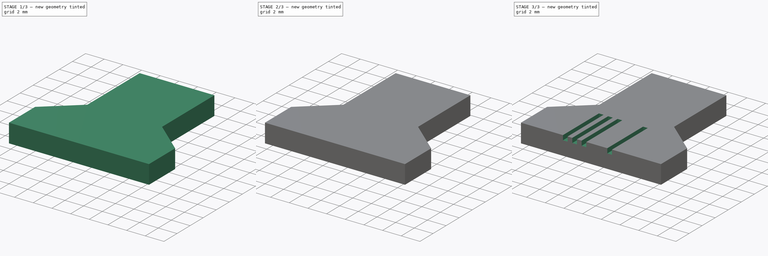
[diagram: build sequence overview — one tinted view per stage of 3, left to right]
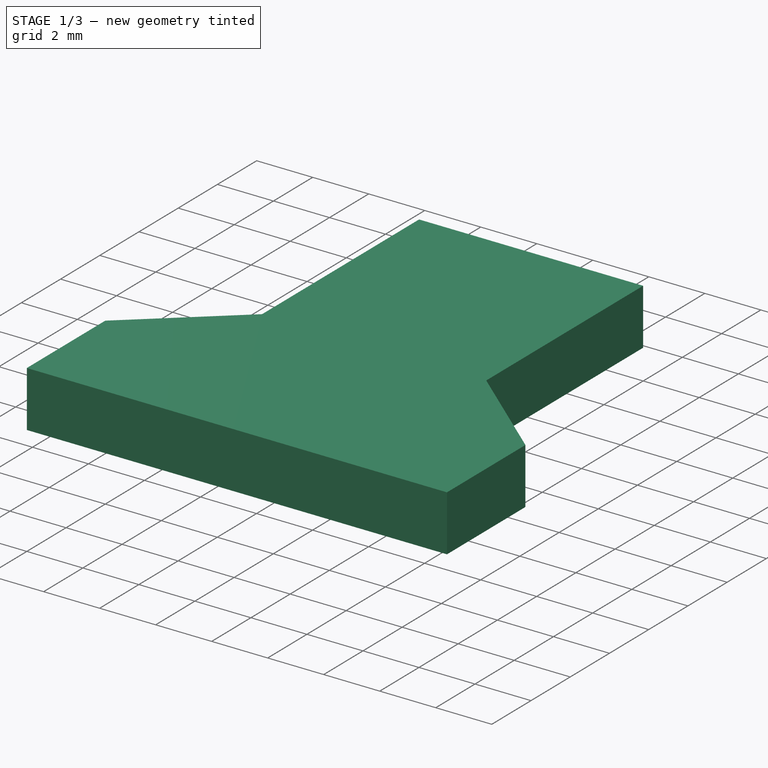
[diagram: stage 1 of 3 — iso view after this stage's code; geometry added in this stage tinted green]
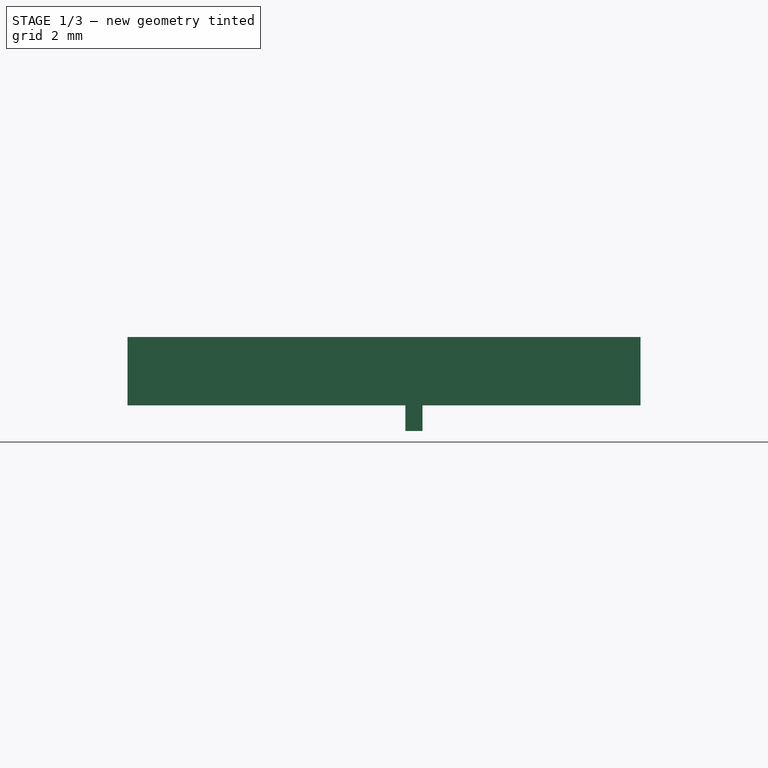
[diagram: stage 1 of 3 — front view after this stage's code; geometry added in this stage tinted green]
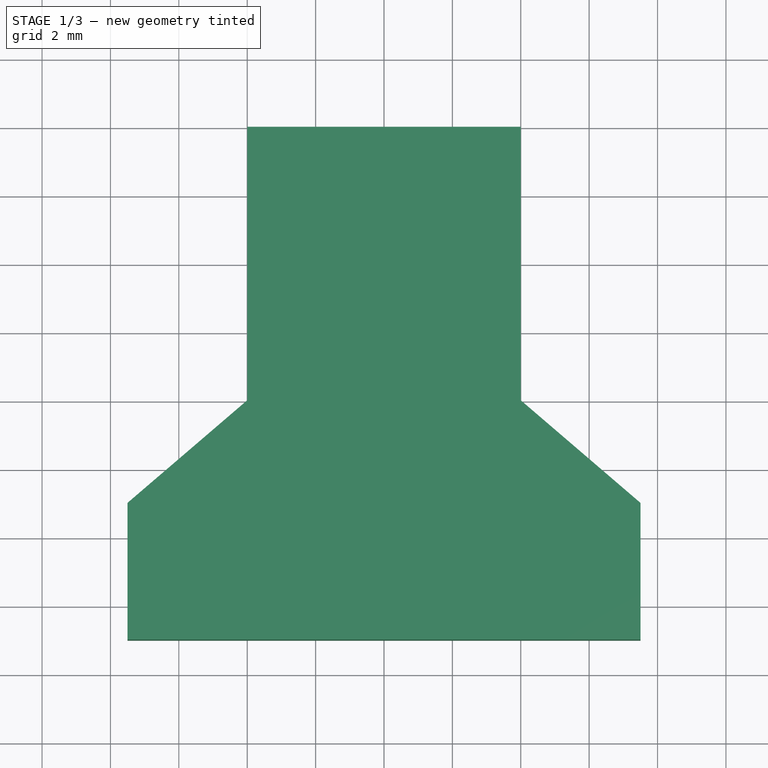
[diagram: stage 1 of 3 — top view after this stage's code; geometry added in this stage tinted green]
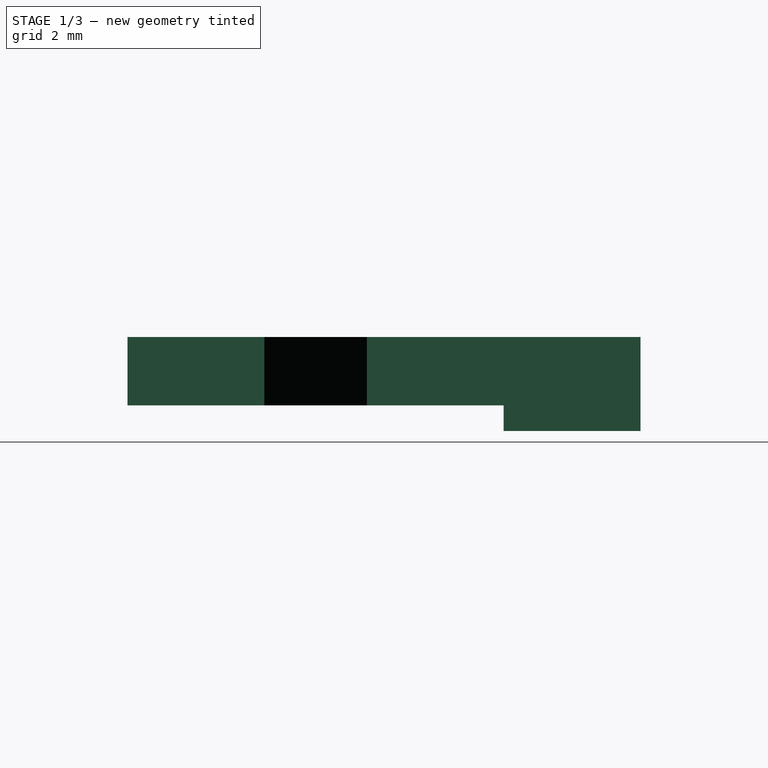
[diagram: stage 1 of 3 — right view after this stage's code; geometry added in this stage tinted green]
FCSTD DOCUMENT  (FreeCAD 0.17R13519 (Git))
Label: NEC21a_prog_Adapter
License: All rights reserved
LicenseURL: http://en.wikipedia.org/wiki/All_rights_reserved
objects: Sketcher::SketchObject×5, PartDesign::Pocket×3, PartDesign::Pad×2, PartDesign::Body×1, App::Part×1
note: 16 computed .brp shape members not serialized (recipe doc carries the construction recipe); baked Part::Feature solids carry a one-line shape summary decoded from their .brp

FEATURE [Sketcher::SketchObject] Sketch  label="Outline"
  MapMode = 5
  Support = -> [XY_Plane001]
  sketch-geometry (8):
    g0: LineSegment StartX=-4 StartY=8 StartZ=0 EndX=4 EndY=8 EndZ=0
    g1: LineSegment StartX=4 StartY=8 StartZ=0 EndX=4 EndY=0 EndZ=0
    g2: LineSegment StartX=-4 StartY=8 StartZ=0 EndX=-4 EndY=0 EndZ=0
    g3: LineSegment StartX=-7.5 StartY=-7 StartZ=0 EndX=7.5 EndY=-7 EndZ=0
    g4: LineSegment StartX=-7.5 StartY=-7 StartZ=0 EndX=-7.5 EndY=-3 EndZ=0
    g5: LineSegment StartX=7.5 StartY=-7 StartZ=0 EndX=7.5 EndY=-3 EndZ=0
    g6: LineSegment StartX=-4 StartY=0 StartZ=0 EndX=-7.5 EndY=-3 EndZ=0
    g7: LineSegment StartX=4 StartY=0 StartZ=0 EndX=7.5 EndY=-3 EndZ=0
  constraints (24):
    c: Horizontal(g0)
    c: Symmetric(g0,g0,g-2)
    c: Distance(g0) = 8
    c: Vertical(g1)
    c: Coincident(g1,g0)
    c: Distance(g-1,g0) = 8
    c: Distance(g1) = 8
    c: Vertical(g2)
    c: Equal(g1,g2)
    c: Coincident(g2,g0)
    c: Horizontal(g3)
    c: Distance(g3) = 15
    c: Symmetric(g3,g3,g-2)
    c: Distance(g-1,g3) = 7
    c: Vertical(g4)
    c: Distance(g4) = 4
    c: Coincident(g4,g3)
    c: Vertical(g5)
    c: Equal(g5,g4)
    c: Coincident(g5,g3)
    c: Coincident(g6,g2)
    c: Coincident(g6,g4)
    c: Coincident(g7,g1)
    c: Coincident(g7,g5)
FEATURE [PartDesign::Pad] Pad  label="Stecker"
  Length = 2
  Length2 = 100
  Profile = -> Sketch
  Type = 0
FEATURE [Sketcher::SketchObject] Sketch001  label="Nase"
  MapMode = 5
  Placement = pos=(0,0,0) rot=(1,0,0;3.14159rad)
  Support = -> [Pad]
  sketch-geometry (4):
    g0: LineSegment StartX=0.625 StartY=-8 StartZ=0 EndX=0.625 EndY=-4 EndZ=0
    g1: LineSegment StartX=1.125 StartY=-4 StartZ=0 EndX=1.125 EndY=-8 EndZ=0
    g2: LineSegment StartX=0.625 StartY=-4 StartZ=0 EndX=1.125 EndY=-4 EndZ=0
    g3: LineSegment StartX=0.625 StartY=-8 StartZ=0 EndX=1.125 EndY=-8 EndZ=0
  constraints (13):
    c: Vertical(g0)
    c: Distance(g0) = 4
    c: Distance(g-1,g0) = 0.625
    c: DistanceY(g-1,g0) = -4
    c: Vertical(g1)
    c: Equal(g1,g0)
    c: DistanceY(g-1,g1) = -4
    c: DistanceX(g0,g1) = 0.5
    c: Coincident(g2,g0)
    c: Coincident(g2,g1)
    c: Horizontal(g3)
    c: Equal(g2,g3)
    c: Coincident(g3,g0)
FEATURE [PartDesign::Pad] Pad001  label="Nase001"
  BaseFeature = -> Pad
  Length = 0.75
  Length2 = 100
  Profile = -> Sketch001
  Type = 0
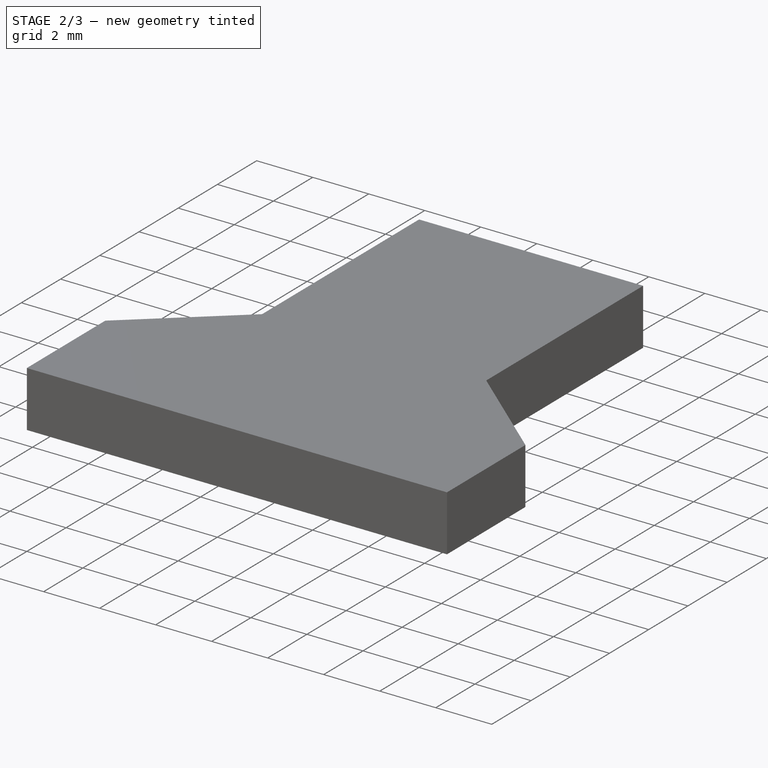
[diagram: stage 2 of 3 — iso view after this stage's code; geometry added in this stage tinted green]
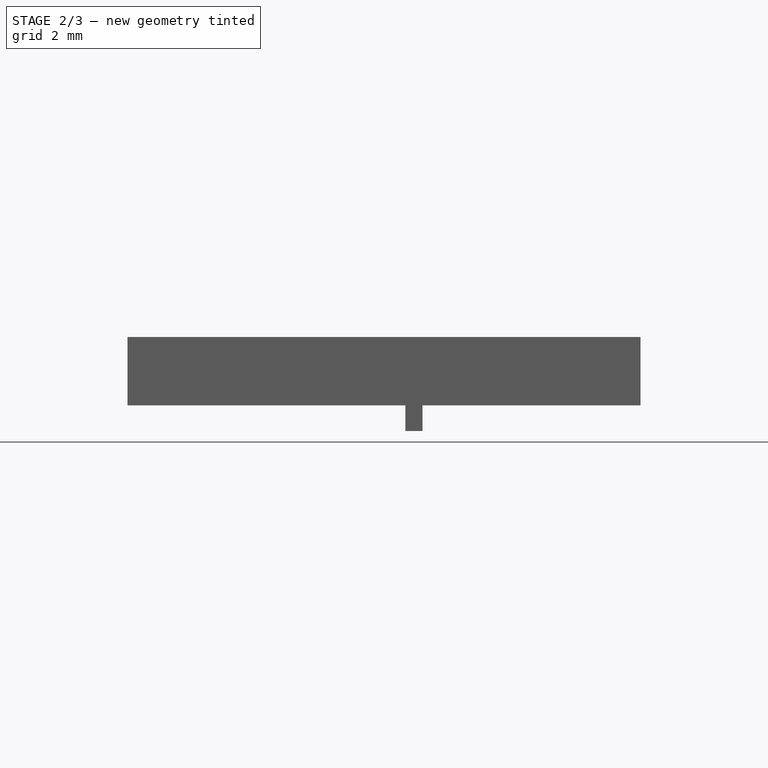
[diagram: stage 2 of 3 — front view after this stage's code; geometry added in this stage tinted green]
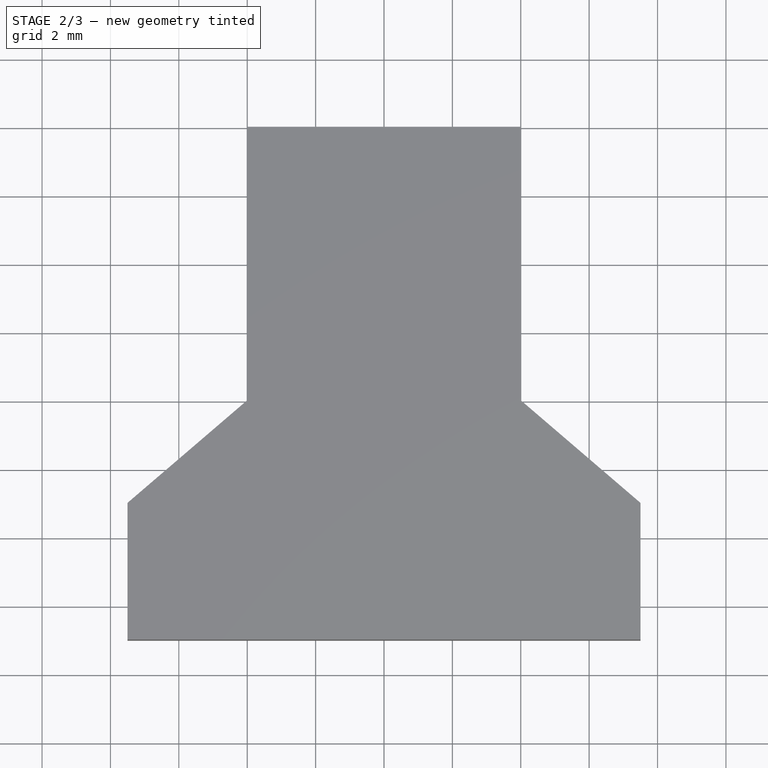
[diagram: stage 2 of 3 — top view after this stage's code; geometry added in this stage tinted green]
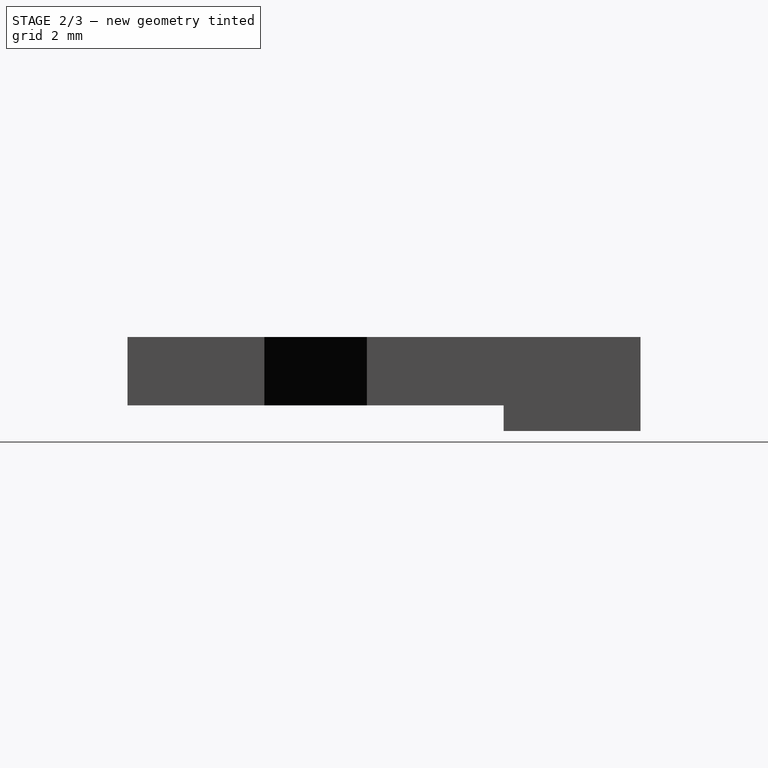
[diagram: stage 2 of 3 — right view after this stage's code; geometry added in this stage tinted green]
FEATURE [Sketcher::SketchObject] Sketch002  label="Kontaktflächen"
  MapMode = 5
  Placement = pos=(0,0,0) rot=(1,0,0;3.14159rad)
  Support = -> [Pad001]
  sketch-geometry (16):
    g0: LineSegment StartX=-3 StartY=2 StartZ=0 EndX=-3 EndY=-8 EndZ=0
    g1: LineSegment StartX=-2.5 StartY=2 StartZ=0 EndX=-2.5 EndY=-8 EndZ=0
    g2: LineSegment StartX=-3 StartY=2 StartZ=0 EndX=-2.5 EndY=2 EndZ=0
    g3: LineSegment StartX=-3 StartY=-8 StartZ=0 EndX=-2.5 EndY=-8 EndZ=0
    g4: LineSegment StartX=-2 StartY=2 StartZ=0 EndX=-1.5 EndY=2 EndZ=0
    g5: LineSegment StartX=-1.5 StartY=2 StartZ=0 EndX=-1.5 EndY=-8 EndZ=0
    g6: LineSegment StartX=-1.5 StartY=-8 StartZ=0 EndX=-2 EndY=-8 EndZ=0
    g7: LineSegment StartX=-2 StartY=-8 StartZ=0 EndX=-2 EndY=2 EndZ=0
    g8: LineSegment StartX=-0.5 StartY=2 StartZ=0 EndX=-1 EndY=2 EndZ=0
    g9: LineSegment StartX=-1 StartY=2 StartZ=0 EndX=-1 EndY=-8 EndZ=0
    g10: LineSegment StartX=-1 StartY=-8 StartZ=0 EndX=-0.5 EndY=-8 EndZ=0
    g11: LineSegment StartX=-0.5 StartY=-8 StartZ=0 EndX=-0.5 EndY=2 EndZ=0
    g12: LineSegment StartX=1.75 StartY=2 StartZ=0 EndX=2.25 EndY=2 EndZ=0
    g13: LineSegment StartX=2.25 StartY=2 StartZ=0 EndX=2.25 EndY=-8 EndZ=0
    g14: LineSegment StartX=2.25 StartY=-8 StartZ=0 EndX=1.75 EndY=-8 EndZ=0
    g15: LineSegment StartX=1.75 StartY=-8 StartZ=0 EndX=1.75 EndY=2 EndZ=0
  constraints (49):
    c: Vertical(g0)
    c: DistanceY(g-1,g0) = -8
    c: Distance(g0) = 10
    c: Vertical(g1)
    c: Equal(g1,g0)
    c: Distance(g-1,g1) = 2.5
    c: Horizontal(g2)
    c: Coincident(g2,g0)
    c: Coincident(g2,g1)
    c: Horizontal(g3)
    c: Equal(g3,g2)
    c: Coincident(g3,g0)
    c: Distance(g2) = 0.5
    c: Coincident(g4,g5)
    c: Coincident(g5,g6)
    c: Coincident(g6,g7)
    c: Coincident(g7,g4)
    c: Horizontal(g4)
    c: Horizontal(g6)
    c: Vertical(g5)
    c: Vertical(g7)
    c: Equal(g2,g4)
    c: Equal(g1,g5)
    c: Distance(g-1,g6) = 8
    c: Coincident(g8,g9)
    c: Coincident(g9,g10)
    c: Coincident(g10,g11)
    c: Coincident(g11,g8)
    c: Horizontal(g8)
    c: Horizontal(g10)
    c: Vertical(g9)
    c: Vertical(g11)
    c: Equal(g4,g8)
    c: Equal(g9,g5)
    c: Distance(g-1,g10) = 8
    c: Distance(g-1,g5) = 1.5
    c: Coincident(g12,g13)
    c: Coincident(g13,g14)
    c: Coincident(g14,g15)
    c: Coincident(g15,g12)
    c: Horizontal(g12)
    c: Horizontal(g14)
    c: Vertical(g13)
    c: Vertical(g15)
    c: Distance(g-1,g14) = 8
    c: Distance(g-1,g15) = 1.75
    c: Equal(g12,g8)
    c: Distance(g-1,g11) = 0.5
    c: Equal(g13,g11)
FEATURE [PartDesign::Pocket] Pocket  label="Kontakte"
  BaseFeature = -> Pad001
  Length = 1
  Length2 = 100
  Profile = -> Sketch002
  Type = 0
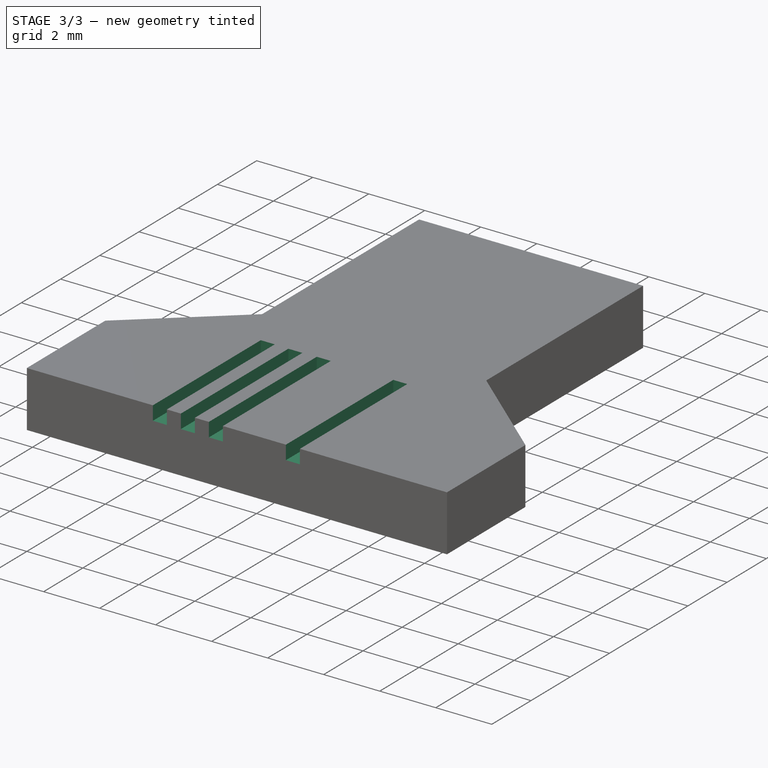
[diagram: stage 3 of 3 — iso view after this stage's code; geometry added in this stage tinted green]
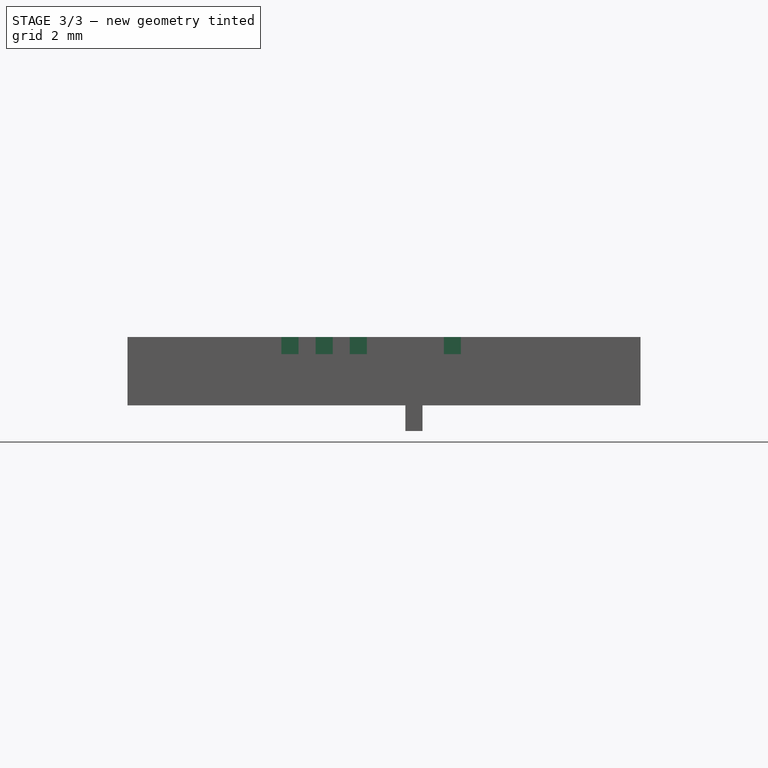
[diagram: stage 3 of 3 — front view after this stage's code; geometry added in this stage tinted green]
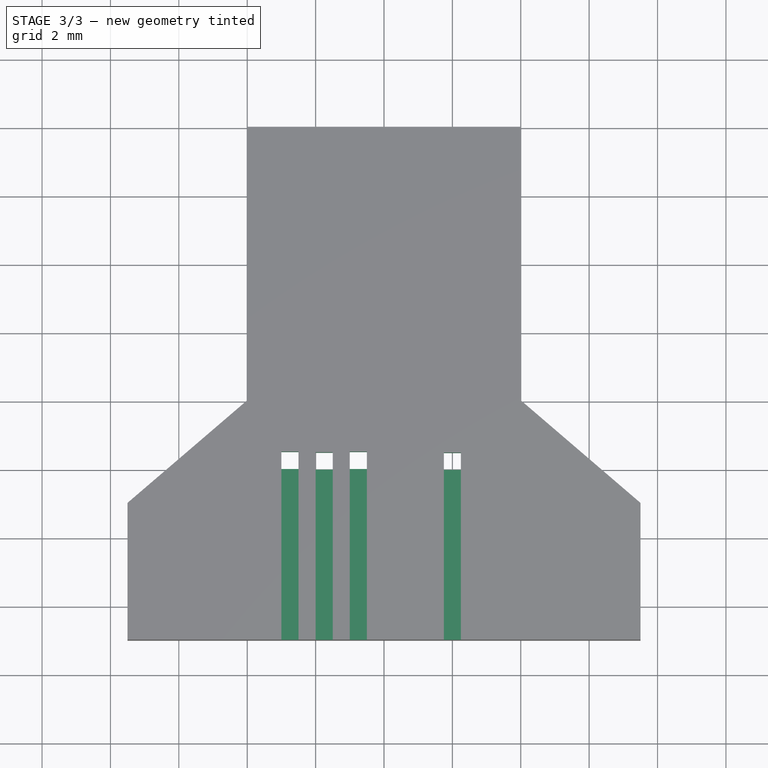
[diagram: stage 3 of 3 — top view after this stage's code; geometry added in this stage tinted green]
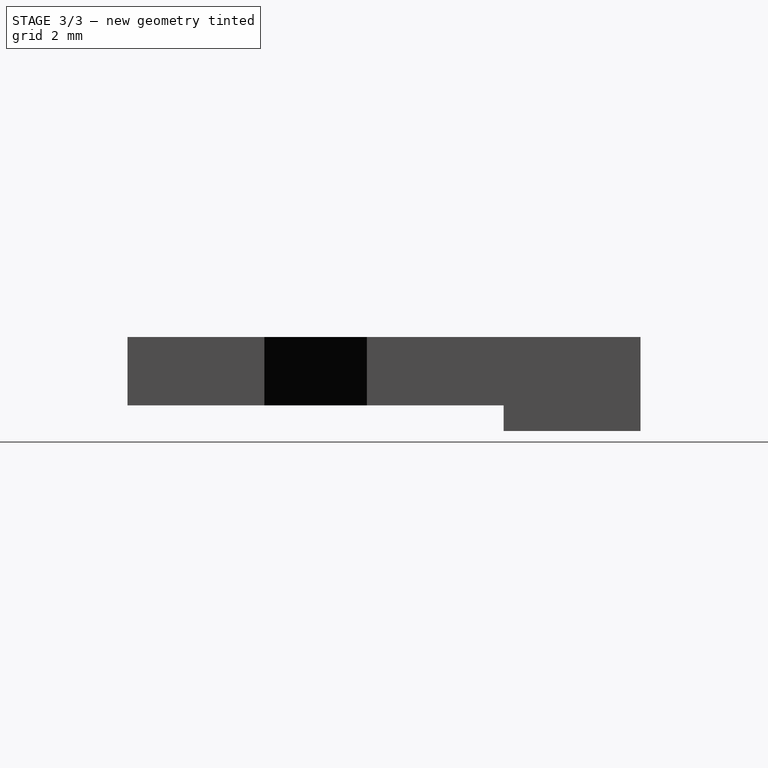
[diagram: stage 3 of 3 — right view after this stage's code; geometry added in this stage tinted green]
FEATURE [Sketcher::SketchObject] Sketch003
  MapMode = 2
  Placement = pos=(0,0,2) rot=(0,0,1;0rad)
  Support = -> [Sketch003]
  sketch-geometry (16):
    g0: LineSegment StartX=-2.5 StartY=-1.5 StartZ=0 EndX=-3 EndY=-1.5 EndZ=0
    g1: LineSegment StartX=-3 StartY=-1.5 StartZ=0 EndX=-3 EndY=-2 EndZ=0
    g2: LineSegment StartX=-3 StartY=-2 StartZ=0 EndX=-2.5 EndY=-2 EndZ=0
    g3: LineSegment StartX=-2.5 StartY=-2 StartZ=0 EndX=-2.5 EndY=-1.5 EndZ=0
    g4: LineSegment StartX=-2 StartY=-1.52041 StartZ=0 EndX=-1.5 EndY=-1.52041 EndZ=0
    g5: LineSegment StartX=-1.5 StartY=-1.52041 StartZ=0 EndX=-1.5 EndY=-2.02041 EndZ=0
    g6: LineSegment StartX=-1.5 StartY=-2.02041 StartZ=0 EndX=-2 EndY=-2.02041 EndZ=0
    g7: LineSegment StartX=-2 StartY=-2.02041 StartZ=0 EndX=-2 EndY=-1.52041 EndZ=0
    g8: LineSegment StartX=-1 StartY=-1.5 StartZ=0 EndX=-0.5 EndY=-1.5 EndZ=0
    g9: LineSegment StartX=-0.5 StartY=-1.5 StartZ=0 EndX=-0.5 EndY=-2 EndZ=0
    g10: LineSegment StartX=-0.5 StartY=-2 StartZ=0 EndX=-1 EndY=-2 EndZ=0
    g11: LineSegment StartX=-1 StartY=-2 StartZ=0 EndX=-1 EndY=-1.5 EndZ=0
    g12: LineSegment StartX=1.75 StartY=-1.52748 StartZ=0 EndX=2.25 EndY=-1.52748 EndZ=0
    g13: LineSegment StartX=2.25 StartY=-1.52748 StartZ=0 EndX=2.25 EndY=-2.02748 EndZ=0
    g14: LineSegment StartX=2.25 StartY=-2.02748 StartZ=0 EndX=1.75 EndY=-2.02748 EndZ=0
    g15: LineSegment StartX=1.75 StartY=-2.02748 StartZ=0 EndX=1.75 EndY=-1.52748 EndZ=0
  constraints (45):
    c: Coincident(g0,g1)
    c: Coincident(g1,g2)
    c: Coincident(g2,g3)
    c: Coincident(g3,g0)
    c: Horizontal(g0)
    c: Horizontal(g2)
    c: Vertical(g1)
    c: Vertical(g3)
    c: Equal(g1,g0)
    c: Distance(g1) = 0.5
    c: Distance(g-1,g0) = 1.5
    c: Distance(g-1,g3) = 2.5
    c: Coincident(g4,g5)
    c: Coincident(g5,g6)
    c: Coincident(g6,g7)
    c: Coincident(g7,g4)
    c: Horizontal(g4)
    c: Horizontal(g6)
    c: Vertical(g5)
    c: Vertical(g7)
    c: Equal(g5,g4)
    c: Equal(g4,g3)
    c: Distance(g-1,g5) = 1.5
    c: Coincident(g8,g9)
    c: Coincident(g9,g10)
    c: Coincident(g10,g11)
    c: Coincident(g11,g8)
    c: Horizontal(g8)
    c: Horizontal(g10)
    c: Vertical(g9)
    c: Vertical(g11)
    c: Equal(g9,g8)
    c: Equal(g8,g4)
    c: Distance(g-1,g9) = 0.5
    c: Coincident(g12,g13)
    c: Coincident(g13,g14)
    c: Coincident(g14,g15)
    c: Coincident(g15,g12)
    c: Horizontal(g12)
    c: Horizontal(g14)
    c: Vertical(g13)
    c: Vertical(g15)
    c: Equal(g13,g12)
    c: Equal(g8,g12)
    c: Distance(g-1,g15) = 1.75
FEATURE [PartDesign::Pocket] Pocket001  label="Durchführungen"
  BaseFeature = -> Pocket
  Length = 1
  Length2 = 100
  Profile = -> Sketch003
  Type = 0
FEATURE [Sketcher::SketchObject] Sketch004
  MapMode = 5
  Placement = pos=(0,0,2) rot=(0,0,1;0rad)
  Support = -> [Pocket001]
  sketch-geometry (16):
    g0: LineSegment StartX=-3 StartY=-2 StartZ=0 EndX=-2.5 EndY=-2 EndZ=0
    g1: LineSegment StartX=-2.5 StartY=-2 StartZ=0 EndX=-2.5 EndY=-7 EndZ=0
    g2: LineSegment StartX=-2.5 StartY=-7 StartZ=0 EndX=-3 EndY=-7 EndZ=0
    g3: LineSegment StartX=-3 StartY=-7 StartZ=0 EndX=-3 EndY=-2 EndZ=0
    g4: LineSegment StartX=-2 StartY=-2 StartZ=0 EndX=-1.5 EndY=-2 EndZ=0
    g5: LineSegment StartX=-1.5 StartY=-2 StartZ=0 EndX=-1.5 EndY=-7 EndZ=0
    g6: LineSegment StartX=-1.5 StartY=-7 StartZ=0 EndX=-2 EndY=-7 EndZ=0
    g7: LineSegment StartX=-2 StartY=-7 StartZ=0 EndX=-2 EndY=-2 EndZ=0
    g8: LineSegment StartX=-1 StartY=-2 StartZ=0 EndX=-0.5 EndY=-2 EndZ=0
    g9: LineSegment StartX=-0.5 StartY=-2 StartZ=0 EndX=-0.5 EndY=-7 EndZ=0
    g10: LineSegment StartX=-0.5 StartY=-7 StartZ=0 EndX=-1 EndY=-7 EndZ=0
    g11: LineSegment StartX=-1 StartY=-7 StartZ=0 EndX=-1 EndY=-2 EndZ=0
    g12: LineSegment StartX=1.75 StartY=-2 StartZ=0 EndX=2.25 EndY=-2 EndZ=0
    g13: LineSegment StartX=2.25 StartY=-2 StartZ=0 EndX=2.25 EndY=-7 EndZ=0
    g14: LineSegment StartX=2.25 StartY=-7 StartZ=0 EndX=1.75 EndY=-7 EndZ=0
    g15: LineSegment StartX=1.75 StartY=-7 StartZ=0 EndX=1.75 EndY=-2 EndZ=0
  constraints (48):
    c: Coincident(g0,g1)
    c: Coincident(g1,g2)
    c: Coincident(g2,g3)
    c: Coincident(g3,g0)
    c: Horizontal(g0)
    c: Horizontal(g2)
    c: Vertical(g1)
    c: Vertical(g3)
    c: Distance(g0) = 0.5
    c: Distance(g1) = 5
    c: Distance(g-1,g0) = 2
    c: Distance(g-1,g1) = 2.5
    c: Coincident(g4,g5)
    c: Coincident(g5,g6)
    c: Coincident(g6,g7)
    c: Coincident(g7,g4)
    c: Horizontal(g4)
    c: Horizontal(g6)
    c: Vertical(g5)
    c: Vertical(g7)
    c: Equal(g7,g3)
    c: Equal(g4,g0)
    c: Distance(g-1,g4) = 2
    c: Distance(g-1,g5) = 1.5
    c: Coincident(g8,g9)
    c: Coincident(g9,g10)
    c: Coincident(g10,g11)
    c: Coincident(g11,g8)
    c: Horizontal(g8)
    c: Horizontal(g10)
    c: Vertical(g9)
    c: Vertical(g11)
    c: Equal(g11,g3)
    c: Equal(g8,g0)
    c: Distance(g-1,g8) = 2
    c: Distance(g-1,g9) = 0.5
    c: Coincident(g12,g13)
    c: Coincident(g13,g14)
    c: Coincident(g14,g15)
    c: Coincident(g15,g12)
    c: Horizontal(g12)
    c: Horizontal(g14)
    c: Vertical(g13)
    c: Vertical(g15)
    c: Equal(g15,g3)
    c: Equal(g12,g0)
    c: Distance(g-1,g15) = 1.75
    c: Distance(g-1,g12) = 2
FEATURE [PartDesign::Pocket] Pocket002
  BaseFeature = -> Pocket001
  Length = 0.5
  Length2 = 100
  Profile = -> Sketch004
  Type = 0
FEATURE [PartDesign::Body] PocketBody
  Group = -> [Sketch,Pad,Sketch001,Pad001,Sketch002,Pocket,Sketch003,Pocket001,Sketch004,Pocket002]
  Origin = -> Origin001
  Tip = -> Pocket002
FEATURE [App::Part] Part
  Group = -> [PocketBody]
  License = CC BY 3.0
  LicenseURL = http://creativecommons.org/licenses/by/3.0/
  Origin = -> Origin
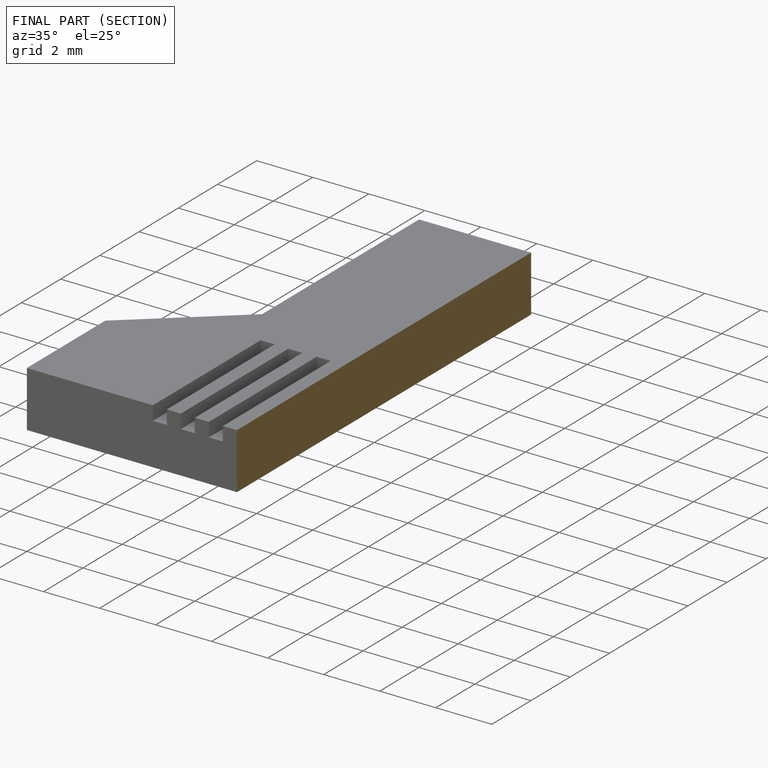
[diagram: finished part — half-section view (interior)]
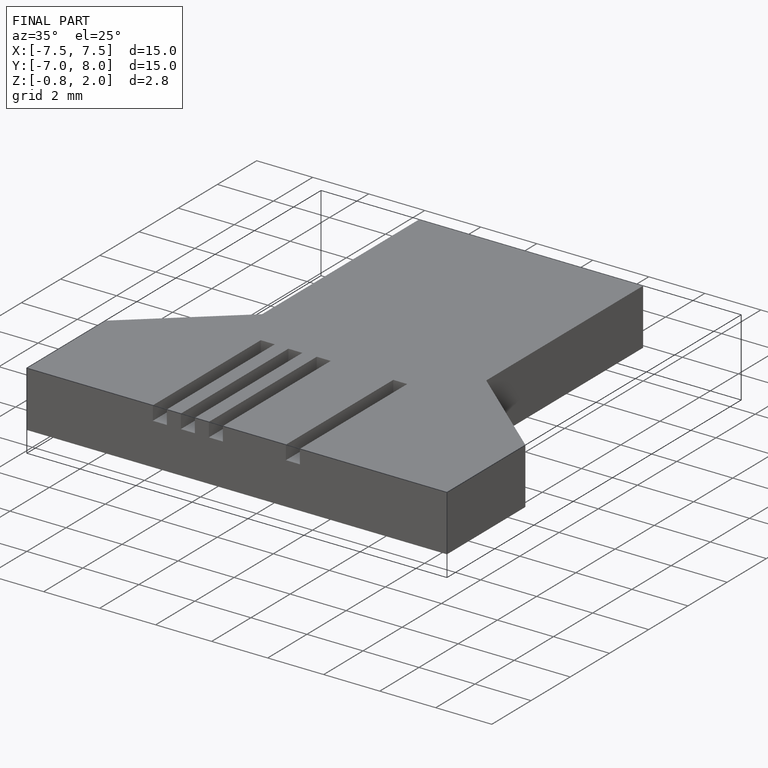
[diagram: finished part — iso view with bounding-box wireframe]
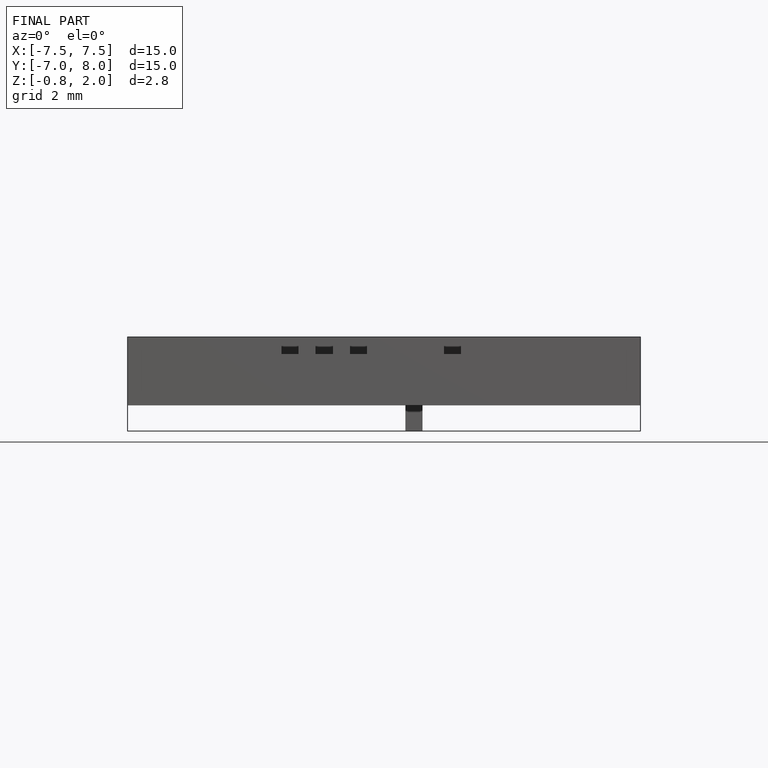
[diagram: finished part — front view with bounding-box wireframe]
